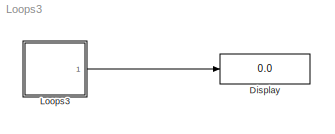
MODEL Loops3
KIND model
BLOCK [Display] Display
  Decimation = 1
  Ports = [1]
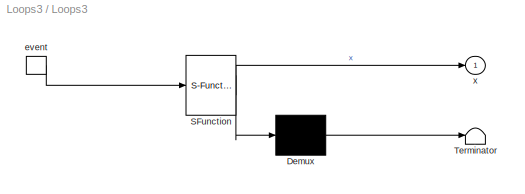
BLOCK [SubSystem] Loops3
  MaskDescription = Stateflow diagram
  MaskDisplay = plot(sf('Private','sfblk','xIcon'),sf('Private','sfblk','yIcon'));text(0.5,0,sf('Private', 'sfblk', 'tIcon'),'HorizontalAl','Center','VerticalAl','Bottom');
  MaskIconFrame = off
  MaskIconOpaque = off
  MaskIconRotate = none
  MaskIconUnits = autoscale
  MaskSelfModifiable = on
  MaskType = Stateflow
  MinAlgLoopOccurrences = off
  Ports = [0, 1, 0, 1]
  RTWSystemCode = Auto
  TreatAsAtomicUnit = off
BLOCK [Demux] Loops3/ Demux 
  Outputs = 1
  Ports = [1, 1]
BLOCK [S-Function] Loops3/ SFunction 
  FunctionName = sf_sfun
  PortCounts = [1 2]
  Ports = [1, 2]
  Tag = Stateflow S-Function Loops3 2
BLOCK [Terminator] Loops3/ Terminator 
BLOCK [TriggerPort] Loops3/event
  Ports = [0, 1]
  ShowOutputPort = on
  TriggerType = either
BLOCK [Outport] Loops3/x
  IconDisplay = Port number
LINE Loops3/ Demux :1 -> Loops3/ Terminator :1
LINE Loops3/ SFunction :1 -> Loops3/ Demux :1
LINE Loops3/ SFunction :2 -> Loops3/x:1
LINE Loops3/event:1 -> Loops3/ SFunction :1
LINE Loops3:1 -> Display:1
CHART Loops3 states=2 transitions=7
  STATE_LABEL 'A'
  STATE_LABEL 'B'
